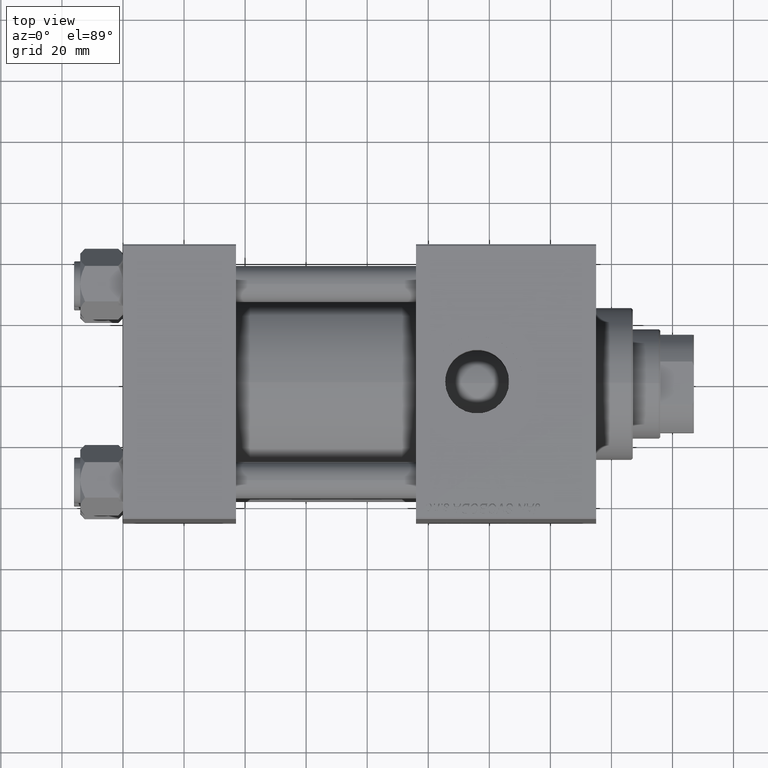
[diagram: clean part render]
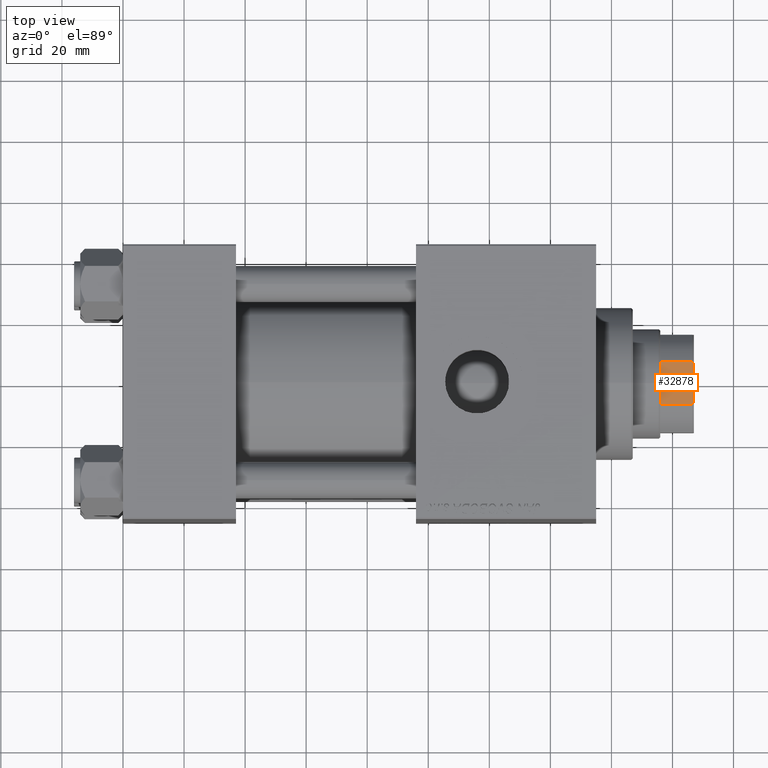
[diagram: same view with one face highlighted and labeled with its STEP entity id]
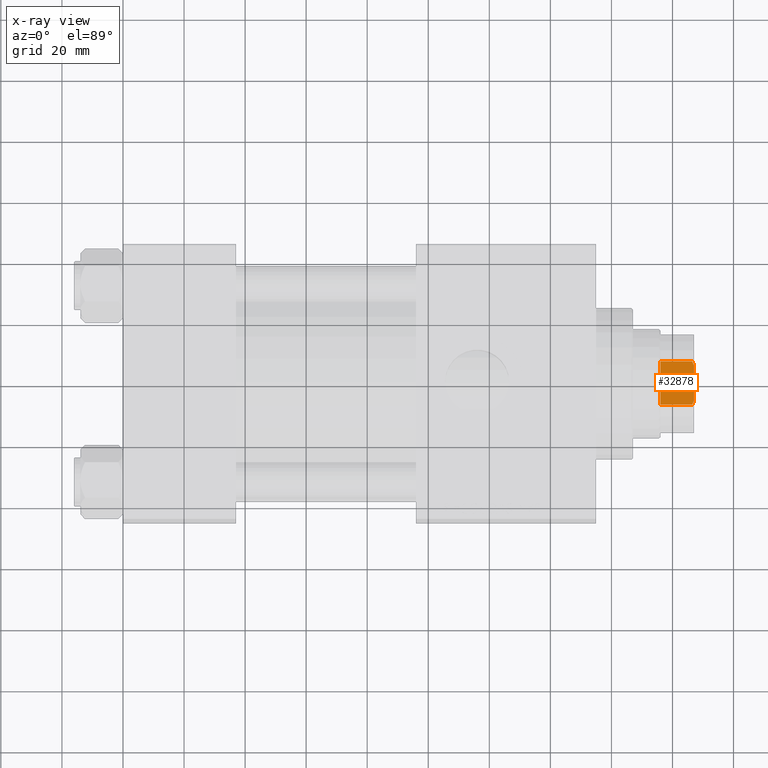
[diagram: x-ray of the same camera — body ghosted, the highlighted face saturated]
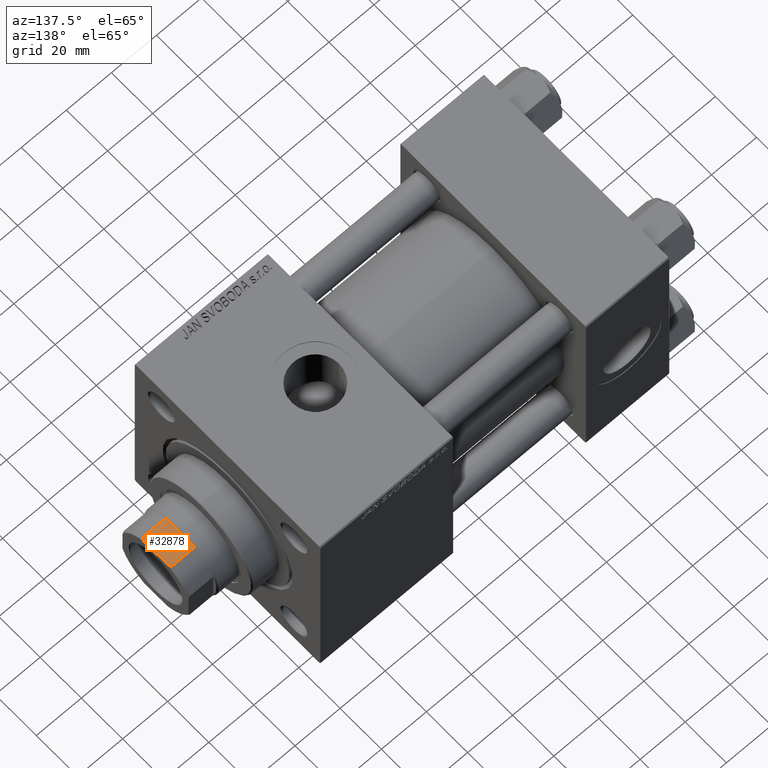
[diagram: same view with one face highlighted and labeled with its STEP entity id]
A machine part, top view. The second image highlights one B-rep face of the part: STEP entity #32878.
The next image is the same camera in x-ray: the body ghosted, the highlighted face saturated — about 0% of this face is hidden behind the body in this view.
A second angle (auxiliary view) of the same face is appended — the face is thin or edge-on in the first view.
In plain terms, the highlighted planar face has unit normal (-0, 0, -1).
Its self-contained STEP definition (entity closure, byte-faithful):
#233 = EDGE_CURVE ( 'NONE', #37477, #40310, #18846, .T. ) ;
#1606 = CARTESIAN_POINT ( 'NONE',  ( 16.00000000000000355, -5.744562646537949568, 150.0000000000000284 ) ) ;
#2484 = VERTEX_POINT ( 'NONE', #35665 ) ;
#2561 = CARTESIAN_POINT ( 'NONE',  ( 16.00000000000000000, 7.088723439378916247, 149.4999999999999716 ) ) ;
#4710 = CARTESIAN_POINT ( 'NONE',  ( 16.00000000000000000, 7.088723439378916247, 149.4999999999999716 ) ) ;
#4754 = ORIENTED_EDGE ( 'NONE', *, *, #47798, .T. ) ;
#5194 = PLANE ( 'NONE',  #33422 ) ;
#5503 = EDGE_CURVE ( 'NONE', #40310, #15919, #38022, .T. ) ;
#5664 = CARTESIAN_POINT ( 'NONE',  ( 15.99999999999999645, -7.088723439378925129, 149.5000000000000000 ) ) ;
#6431 = CARTESIAN_POINT ( 'NONE',  ( 16.00000000000000000, 7.088723439378916247, -0.001000000000001000089 ) ) ;
#7067 = VECTOR ( 'NONE', #30769, 1000.000000000000000 ) ;
#9076 = EDGE_LOOP ( 'NONE', ( #26578, #10562, #45124, #4754, #17422, #16074 ) ) ;
#10151 = VERTEX_POINT ( 'NONE', #14519 ) ;
#10562 = ORIENTED_EDGE ( 'NONE', *, *, #5503, .T. ) ;
#11441 = CARTESIAN_POINT ( 'NONE',  ( 15.99999999999999645, -7.088723439378925129, 149.5000000000000000 ) ) ;
#12393 = LINE ( 'NONE', #27633, #36045 ) ;
#13043 = DIRECTION ( 'NONE',  ( -1.000000000000000000, -2.168404344971009115E-16, 0.000000000000000000 ) ) ;
#13480 = DIRECTION ( 'NONE',  ( -2.168404344971008868E-16, 1.000000000000000000, -0.000000000000000000 ) ) ;
#14057 = CARTESIAN_POINT ( 'NONE',  ( 16.00000000000000355, 6.197659614355954361, 149.8468915343184165 ) ) ;
#14062 = VECTOR ( 'NONE', #13480, 1000.000000000000000 ) ;
#14519 = CARTESIAN_POINT ( 'NONE',  ( 15.99999999999999645, -7.088723439378925129, 139.0000000000000000 ) ) ;
#15919 = VERTEX_POINT ( 'NONE', #25428 ) ;
#16074 = ORIENTED_EDGE ( 'NONE', *, *, #42925, .T. ) ;
#17230 = CARTESIAN_POINT ( 'NONE',  ( 16.00000000000000000, 7.088723439378916247, 139.0000000000000000 ) ) ;
#17351 = CARTESIAN_POINT ( 'NONE',  ( 16.00000000000000000, 16.00000000000000000, 150.0000000000000284 ) ) ;
#17422 = ORIENTED_EDGE ( 'NONE', *, *, #23460, .F. ) ;
#18846 = LINE ( 'NONE', #6431, #7067 ) ;
#20184 = CARTESIAN_POINT ( 'NONE',  ( 16.00000000000000000, 6.645462757301070056, 149.6795515649599793 ) ) ;
#22001 = LINE ( 'NONE', #37736, #24964 ) ;
#23460 = EDGE_CURVE ( 'NONE', #10151, #27849, #22001, .T. ) ;
#24490 = FACE_OUTER_BOUND ( 'NONE', #9076, .T. ) ;
#24964 = VECTOR ( 'NONE', #49403, 1000.000000000000000 ) ;
#25428 = CARTESIAN_POINT ( 'NONE',  ( 16.00000000000000355, 5.744562646537874961, 150.0000000000000284 ) ) ;
#26578 = ORIENTED_EDGE ( 'NONE', *, *, #233, .T. ) ;
#27633 = CARTESIAN_POINT ( 'NONE',  ( 16.00000000000000000, 16.00000000000000000, 139.0000000000000000 ) ) ;
#27849 = VERTEX_POINT ( 'NONE', #11441 ) ;
#28759 = CARTESIAN_POINT ( 'NONE',  ( 16.00000000000000355, -6.197659614356007651, 149.8468915343184449 ) ) ;
#30769 = DIRECTION ( 'NONE',  ( -0.000000000000000000, -0.000000000000000000, 1.000000000000000000 ) ) ;
#32797 = LINE ( 'NONE', #48265, #14062 ) ;
#32878 = ADVANCED_FACE ( 'NONE', ( #24490 ), #5194, .F. ) ;
#33422 = AXIS2_PLACEMENT_3D ( 'NONE', #17351, #13043, #36407 ) ;
#35665 = CARTESIAN_POINT ( 'NONE',  ( 16.00000000000000355, -5.744562646537949568, 150.0000000000000284 ) ) ;
#36045 = VECTOR ( 'NONE', #43122, 1000.000000000000000 ) ;
#36407 = DIRECTION ( 'NONE',  ( 2.168404344971009115E-16, -1.000000000000000000, 0.000000000000000000 ) ) ;
#37339 = B_SPLINE_CURVE_WITH_KNOTS ( 'NONE', 3,
 ( #1606, #28759, #45233, #5664 ),
 .UNSPECIFIED., .F., .F.,
 ( 4, 4 ),
 ( 8.673617379884035472E-19, 0.001434143729551160071 ),
 .UNSPECIFIED. ) ;
#37477 = VERTEX_POINT ( 'NONE', #17230 ) ;
#37736 = CARTESIAN_POINT ( 'NONE',  ( 15.99999999999999645, -7.088723439378925129, -0.001000000000001000089 ) ) ;
#38022 = B_SPLINE_CURVE_WITH_KNOTS ( 'NONE', 3,
 ( #4710, #20184, #14057, #40976 ),
 .UNSPECIFIED., .F., .F.,
 ( 4, 4 ),
 ( 0.000000000000000000, 0.001434143729551229894 ),
 .UNSPECIFIED. ) ;
#40310 = VERTEX_POINT ( 'NONE', #2561 ) ;
#40976 = CARTESIAN_POINT ( 'NONE',  ( 16.00000000000000355, 5.744562646537874961, 150.0000000000000284 ) ) ;
#41111 = EDGE_CURVE ( 'NONE', #2484, #15919, #32797, .T. ) ;
#42925 = EDGE_CURVE ( 'NONE', #10151, #37477, #12393, .T. ) ;
#43122 = DIRECTION ( 'NONE',  ( -2.168404344971008868E-16, 1.000000000000000000, -0.000000000000000000 ) ) ;
#45124 = ORIENTED_EDGE ( 'NONE', *, *, #41111, .F. ) ;
#45233 = CARTESIAN_POINT ( 'NONE',  ( 16.00000000000000355, -6.645462757301111800, 149.6795515649600361 ) ) ;
#47798 = EDGE_CURVE ( 'NONE', #2484, #27849, #37339, .T. ) ;
#48265 = CARTESIAN_POINT ( 'NONE',  ( 16.00000000000000000, 16.00000000000000000, 150.0000000000000284 ) ) ;
#49403 = DIRECTION ( 'NONE',  ( -0.000000000000000000, -0.000000000000000000, 1.000000000000000000 ) ) ;